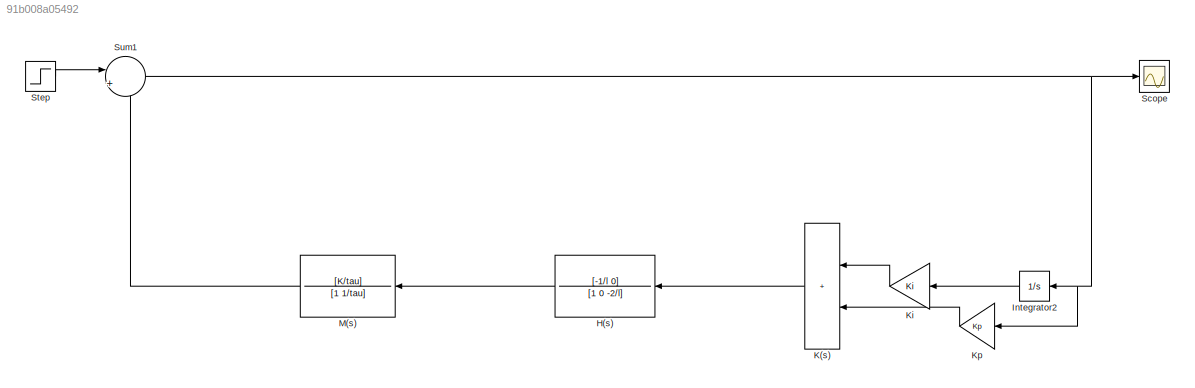
MODEL slx_91b008a05492
KIND model
CONFIG AbsTol = auto
CONFIG EnableMultiTasking = off
CONFIG FixedStep = auto
CONFIG MaxStep = auto
CONFIG MinStep = auto
CONFIG RelTol = 1e-3
CONFIG SampleTimeConstraint = Unconstrained
CONFIG SolverName = VariableStepAuto
CONFIG StartTime = 0.0
CONFIG StopTime = 10.0
BLOCK [TransferFcn] H(s)
  Denominator = [1 0 -2/l]
  Numerator = [-1/l 0]
BLOCK [Integrator] Integrator2
BLOCK [Sum] K(s)
  IconShape = rectangular
  Inputs = |++
  NameLocation = top
BLOCK [Gain] Ki
  Gain = Ki
BLOCK [Gain] Kp
  Gain = Kp
BLOCK [TransferFcn] M(s)
  Denominator = [1 1/tau]
  Numerator = [K/tau]
BLOCK [Scope] Scope
  Floating = off
  NumInputPorts = 1
  ScopeSpecificationString = Simulink.scopes.TimeScopeBlockCfg('CurrentConfiguration', extmgr.ConfigurationSet(extmgr.Configuration('Core','General UI',true),extmgr.Configuration('Core','Source UI',true),extmgr.Configuration('Sources','WiredSimulink',true),extmgr.Configuration('Visuals','Time Domain',true,'SerializedDisplays',{struct('MinYLimReal','-24.35416','MaxYLimReal','24.92824','YLabelReal','','MinYLimMag','0.00000','Ma...<+1385ch>
BLOCK [Step] Step
  After = 20
  SampleTime = 0
BLOCK [Sum] Sum1
  Inputs = |++
LINE H(s):1 -> M(s):1
LINE Integrator2:1 -> Ki:1
LINE K(s):1 -> H(s):1
LINE Ki:1 -> K(s):1
LINE Kp:1 -> K(s):2
LINE M(s):1 -> Sum1:2
LINE Step:1 -> Sum1:1
NET Sum1:1 -> Integrator2:1, Kp:1, Scope:1
note: NET lines group one-source signal fan-out (src -> all destinations, sorted); 1:1 wires keep LINE
